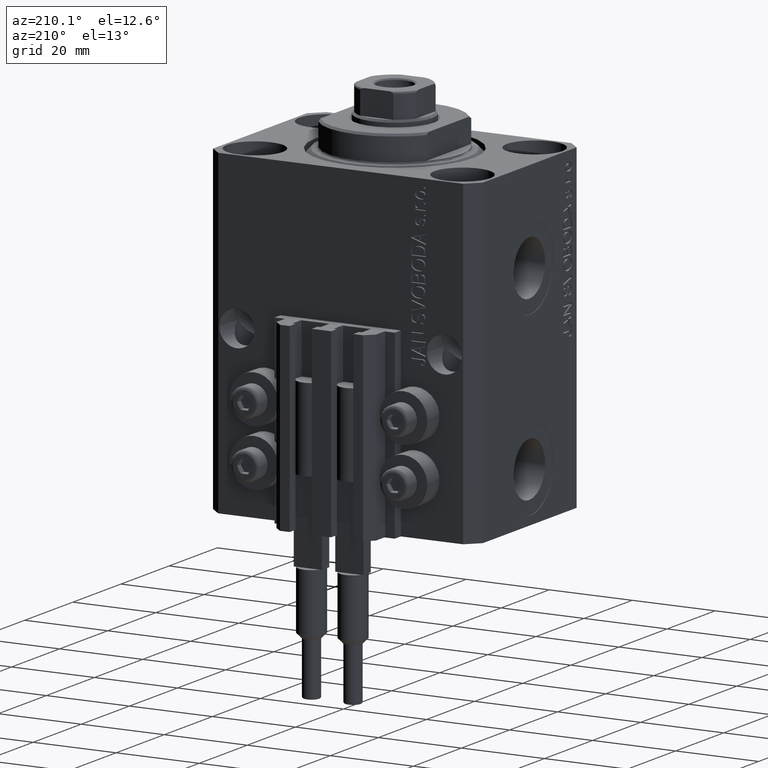
[diagram: clean part render]
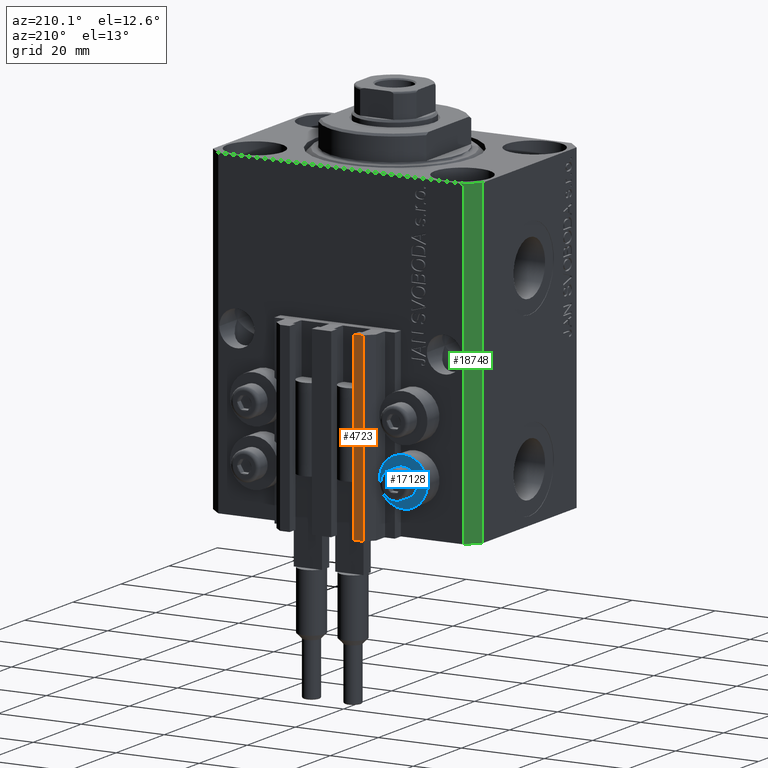
[diagram: same view with three faces highlighted in distinct colors, each labeled with its STEP entity id]
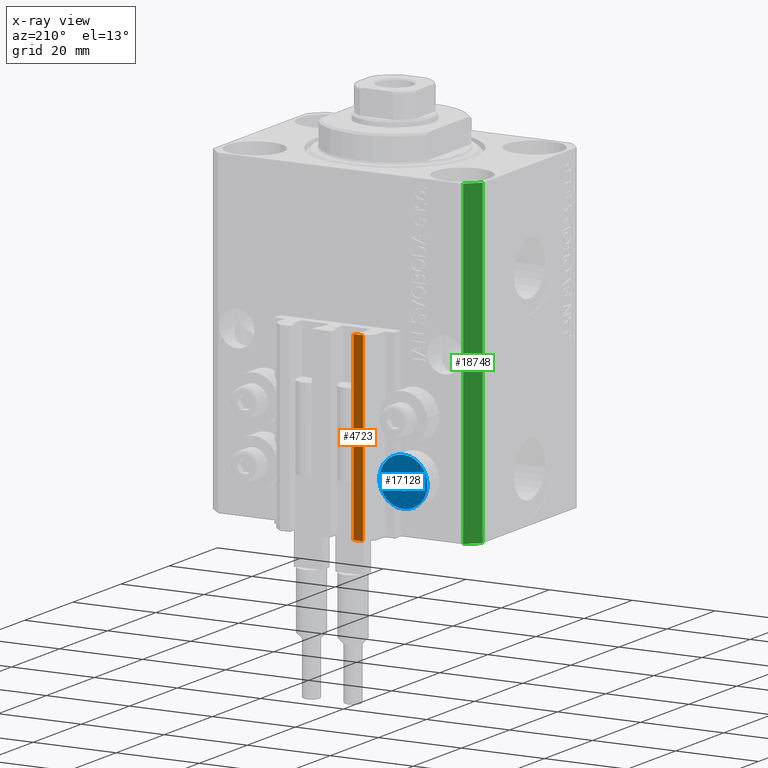
[diagram: x-ray of the same camera — body ghosted, the three highlighted faces saturated]
A machine part, auxiliary view with three faces highlighted in distinct colors.
The next image is the same camera in x-ray (body ghosted, the three faces saturated) — at least one of them is partly hidden behind the body in this view.
Their STEP definitions:

[orange] entity #4723 — the highlighted planar face has unit normal (0, 1, 0).
#1401 = ORIENTED_EDGE ( 'NONE', *, *, #48146, .T. ) ;
#2309 = ORIENTED_EDGE ( 'NONE', *, *, #30567, .F. ) ;
#4723 = ADVANCED_FACE ( 'NONE', ( #43395 ), #13437, .T. ) ;
#10758 = CARTESIAN_POINT ( 'NONE',  ( -7.650000000000000355, 30.49999999999948486, -33.00000000000000000 ) ) ;
#10840 = DIRECTION ( 'NONE',  ( 0.000000000000000000, 0.000000000000000000, 1.000000000000000000 ) ) ;
#13437 = PLANE ( 'NONE',  #27845 ) ;
#13609 = EDGE_CURVE ( 'NONE', #24386, #17845, #27156, .T. ) ;
#14457 = EDGE_LOOP ( 'NONE', ( #24210, #2309, #43519, #1401 ) ) ;
#14838 = DIRECTION ( 'NONE',  ( -1.000000000000000000, 1.476360405086644852E-15, 0.000000000000000000 ) ) ;
#15769 = CARTESIAN_POINT ( 'NONE',  ( -7.650000000000000355, 30.49999999999948486, -77.00000000000000000 ) ) ;
#17654 = VERTEX_POINT ( 'NONE', #20162 ) ;
#17845 = VERTEX_POINT ( 'NONE', #30675 ) ;
#20162 = CARTESIAN_POINT ( 'NONE',  ( -10.00000000000000000, 30.49999999999948841, -33.00000000000000000 ) ) ;
#21566 = LINE ( 'NONE', #10758, #30868 ) ;
#22581 = VECTOR ( 'NONE', #30600, 1000.000000000000000 ) ;
#23810 = VECTOR ( 'NONE', #47686, 1000.000000000000000 ) ;
#24101 = VERTEX_POINT ( 'NONE', #30571 ) ;
#24210 = ORIENTED_EDGE ( 'NONE', *, *, #31071, .F. ) ;
#24386 = VERTEX_POINT ( 'NONE', #15769 ) ;
#25490 = DIRECTION ( 'NONE',  ( -1.000000000000000000, 1.476360405086644852E-15, 0.000000000000000000 ) ) ;
#27156 = LINE ( 'NONE', #42609, #22581 ) ;
#27845 = AXIS2_PLACEMENT_3D ( 'NONE', #39966, #32344, #14838 ) ;
#30567 = EDGE_CURVE ( 'NONE', #24386, #24101, #36402, .T. ) ;
#30571 = CARTESIAN_POINT ( 'NONE',  ( -7.650000000000000355, 30.49999999999948486, -33.00000000000000000 ) ) ;
#30600 = DIRECTION ( 'NONE',  ( -1.000000000000000000, 1.476360405086644852E-15, 0.000000000000000000 ) ) ;
#30675 = CARTESIAN_POINT ( 'NONE',  ( -10.00000000000000000, 30.49999999999948841, -77.00000000000000000 ) ) ;
#30868 = VECTOR ( 'NONE', #25490, 1000.000000000000000 ) ;
#31071 = EDGE_CURVE ( 'NONE', #24101, #17654, #21566, .T. ) ;
#32344 = DIRECTION ( 'NONE',  ( 1.476360405086644852E-15, 1.000000000000000000, -0.000000000000000000 ) ) ;
#32933 = LINE ( 'NONE', #36365, #34666 ) ;
#34666 = VECTOR ( 'NONE', #10840, 1000.000000000000000 ) ;
#36365 = CARTESIAN_POINT ( 'NONE',  ( -10.00000000000000000, 30.49999999999948841, -77.00000000000000000 ) ) ;
#36402 = LINE ( 'NONE', #40589, #23810 ) ;
#39966 = CARTESIAN_POINT ( 'NONE',  ( -7.650000000000000355, 30.49999999999948486, -77.00000000000000000 ) ) ;
#40589 = CARTESIAN_POINT ( 'NONE',  ( -7.650000000000000355, 30.49999999999948486, -77.00000000000000000 ) ) ;
#42609 = CARTESIAN_POINT ( 'NONE',  ( -7.650000000000000355, 30.49999999999948486, -77.00000000000000000 ) ) ;
#43395 = FACE_OUTER_BOUND ( 'NONE', #14457, .T. ) ;
#43519 = ORIENTED_EDGE ( 'NONE', *, *, #13609, .T. ) ;
#47686 = DIRECTION ( 'NONE',  ( 0.000000000000000000, 0.000000000000000000, 1.000000000000000000 ) ) ;
#48146 = EDGE_CURVE ( 'NONE', #17845, #17654, #32933, .T. ) ;

[blue] entity #17128 — the highlighted planar face has unit normal (0, -1, 0).
#449 = DIRECTION ( 'NONE',  ( 0.000000000000000000, 0.000000000000000000, -1.000000000000000000 ) ) ;
#1184 = AXIS2_PLACEMENT_3D ( 'NONE', #17919, #33131, #14330 ) ;
#3475 = ORIENTED_EDGE ( 'NONE', *, *, #32474, .T. ) ;
#7048 = DIRECTION ( 'NONE',  ( 0.000000000000000000, 0.000000000000000000, -1.000000000000000000 ) ) ;
#8341 = DIRECTION ( 'NONE',  ( 0.000000000000000000, -1.000000000000000000, 0.000000000000000000 ) ) ;
#9213 = AXIS2_PLACEMENT_3D ( 'NONE', #31147, #46101, #20565 ) ;
#9282 = ORIENTED_EDGE ( 'NONE', *, *, #36728, .T. ) ;
#10072 = EDGE_LOOP ( 'NONE', ( #20159, #28468 ) ) ;
#10233 = DIRECTION ( 'NONE',  ( -0.000000000000000000, -1.000000000000000000, -0.000000000000000000 ) ) ;
#11274 = CARTESIAN_POINT ( 'NONE',  ( -18.00000000000000355, 27.49999999996051514, -69.79999999999999716 ) ) ;
#12418 = VERTEX_POINT ( 'NONE', #11274 ) ;
#13109 = CIRCLE ( 'NONE', #9213, 5.799999999999999822 ) ;
#14330 = DIRECTION ( 'NONE',  ( 0.000000000000000000, 0.000000000000000000, -1.000000000000000000 ) ) ;
#15408 = CARTESIAN_POINT ( 'NONE',  ( -18.00000000000000355, 27.49999999996051514, -64.00000000000000000 ) ) ;
#15687 = FACE_BOUND ( 'NONE', #15691, .T. ) ;
#15691 = EDGE_LOOP ( 'NONE', ( #9282, #3475 ) ) ;
#16415 = CARTESIAN_POINT ( 'NONE',  ( -12.20000000000000284, 27.49999999996051514, -64.00000000000000000 ) ) ;
#17128 = ADVANCED_FACE ( 'NONE', ( #15687, #42921 ), #19853, .F. ) ;
#17919 = CARTESIAN_POINT ( 'NONE',  ( -18.00000000000000355, 27.49999999996051514, -64.00000000000000000 ) ) ;
#19570 = VERTEX_POINT ( 'NONE', #30500 ) ;
#19853 = PLANE ( 'NONE',  #24216 ) ;
#20159 = ORIENTED_EDGE ( 'NONE', *, *, #31294, .F. ) ;
#20565 = DIRECTION ( 'NONE',  ( 0.000000000000000000, 0.000000000000000000, -1.000000000000000000 ) ) ;
#24216 = AXIS2_PLACEMENT_3D ( 'NONE', #16415, #8341, #38280 ) ;
#25699 = CARTESIAN_POINT ( 'NONE',  ( -18.00000000000000355, 27.49999999996051514, -64.00000000000000000 ) ) ;
#26207 = AXIS2_PLACEMENT_3D ( 'NONE', #15408, #34069, #449 ) ;
#28292 = VERTEX_POINT ( 'NONE', #38679 ) ;
#28468 = ORIENTED_EDGE ( 'NONE', *, *, #42364, .F. ) ;
#30165 = AXIS2_PLACEMENT_3D ( 'NONE', #25699, #10233, #7048 ) ;
#30500 = CARTESIAN_POINT ( 'NONE',  ( -18.00000000000000355, 27.49999999996051514, -66.00000000000000000 ) ) ;
#30966 = CIRCLE ( 'NONE', #1184, 2.000000000000001776 ) ;
#31147 = CARTESIAN_POINT ( 'NONE',  ( -18.00000000000000355, 27.49999999996051514, -64.00000000000000000 ) ) ;
#31294 = EDGE_CURVE ( 'NONE', #12418, #33931, #44195, .T. ) ;
#32474 = EDGE_CURVE ( 'NONE', #19570, #28292, #39552, .T. ) ;
#32952 = CARTESIAN_POINT ( 'NONE',  ( -18.00000000000000355, 27.49999999996051514, -58.20000000000000284 ) ) ;
#33131 = DIRECTION ( 'NONE',  ( -0.000000000000000000, -1.000000000000000000, -0.000000000000000000 ) ) ;
#33931 = VERTEX_POINT ( 'NONE', #32952 ) ;
#34069 = DIRECTION ( 'NONE',  ( -0.000000000000000000, -1.000000000000000000, -0.000000000000000000 ) ) ;
#36728 = EDGE_CURVE ( 'NONE', #28292, #19570, #30966, .T. ) ;
#38280 = DIRECTION ( 'NONE',  ( 0.000000000000000000, 0.000000000000000000, 1.000000000000000000 ) ) ;
#38679 = CARTESIAN_POINT ( 'NONE',  ( -18.00000000000000355, 27.49999999996051514, -62.00000000000000000 ) ) ;
#39552 = CIRCLE ( 'NONE', #30165, 2.000000000000001776 ) ;
#42364 = EDGE_CURVE ( 'NONE', #33931, #12418, #13109, .T. ) ;
#42921 = FACE_OUTER_BOUND ( 'NONE', #10072, .T. ) ;
#44195 = CIRCLE ( 'NONE', #26207, 5.799999999999999822 ) ;
#46101 = DIRECTION ( 'NONE',  ( -0.000000000000000000, -1.000000000000000000, -0.000000000000000000 ) ) ;

[green] entity #18748 — the highlighted planar face has unit normal (-0.7071, 0.7071, 0).
#574 = VECTOR ( 'NONE', #25952, 1000.000000000000114 ) ;
#2461 = LINE ( 'NONE', #28231, #32490 ) ;
#2921 = CARTESIAN_POINT ( 'NONE',  ( -29.49999999999650413, 22.49999999999949907, 0.000000000000000000 ) ) ;
#4275 = DIRECTION ( 'NONE',  ( 0.000000000000000000, 0.000000000000000000, 1.000000000000000000 ) ) ;
#4880 = PLANE ( 'NONE',  #19705 ) ;
#5205 = DIRECTION ( 'NONE',  ( -0.7071067811865474617, -0.7071067811865474617, 0.000000000000000000 ) ) ;
#8028 = VERTEX_POINT ( 'NONE', #13212 ) ;
#9575 = VERTEX_POINT ( 'NONE', #21875 ) ;
#9780 = VERTEX_POINT ( 'NONE', #2921 ) ;
#10772 = ORIENTED_EDGE ( 'NONE', *, *, #12761, .F. ) ;
#11809 = EDGE_CURVE ( 'NONE', #9575, #9780, #30306, .T. ) ;
#12761 = EDGE_CURVE ( 'NONE', #9780, #8028, #29641, .T. ) ;
#13212 = CARTESIAN_POINT ( 'NONE',  ( -32.49999999999650413, 19.49999999999949907, 0.000000000000000000 ) ) ;
#15914 = EDGE_LOOP ( 'NONE', ( #10772, #34703, #43809, #33496 ) ) ;
#17626 = EDGE_CURVE ( 'NONE', #9575, #34067, #20643, .T. ) ;
#18748 = ADVANCED_FACE ( 'NONE', ( #34572 ), #4880, .T. ) ;
#19705 = AXIS2_PLACEMENT_3D ( 'NONE', #35533, #19845, #45621 ) ;
#19845 = DIRECTION ( 'NONE',  ( -0.7071067811865475727, 0.7071067811865475727, 0.000000000000000000 ) ) ;
#20643 = LINE ( 'NONE', #42748, #32895 ) ;
#21875 = CARTESIAN_POINT ( 'NONE',  ( -29.49999999999650413, 22.49999999999949907, -77.00000000000000000 ) ) ;
#22688 = CARTESIAN_POINT ( 'NONE',  ( -29.49999999999650413, 22.49999999999949907, -77.00000000000000000 ) ) ;
#25952 = DIRECTION ( 'NONE',  ( -0.7071067811865474617, -0.7071067811865474617, 0.000000000000000000 ) ) ;
#27201 = VECTOR ( 'NONE', #4275, 1000.000000000000000 ) ;
#28231 = CARTESIAN_POINT ( 'NONE',  ( -32.49999999999650413, 19.49999999999949907, -77.00000000000000000 ) ) ;
#29641 = LINE ( 'NONE', #37493, #574 ) ;
#30306 = LINE ( 'NONE', #22688, #27201 ) ;
#32490 = VECTOR ( 'NONE', #32641, 1000.000000000000000 ) ;
#32641 = DIRECTION ( 'NONE',  ( 0.000000000000000000, 0.000000000000000000, 1.000000000000000000 ) ) ;
#32895 = VECTOR ( 'NONE', #5205, 1000.000000000000114 ) ;
#33496 = ORIENTED_EDGE ( 'NONE', *, *, #35621, .T. ) ;
#34067 = VERTEX_POINT ( 'NONE', #37614 ) ;
#34572 = FACE_OUTER_BOUND ( 'NONE', #15914, .T. ) ;
#34703 = ORIENTED_EDGE ( 'NONE', *, *, #11809, .F. ) ;
#35533 = CARTESIAN_POINT ( 'NONE',  ( -29.49999999999650413, 22.49999999999949907, -77.00000000000000000 ) ) ;
#35621 = EDGE_CURVE ( 'NONE', #34067, #8028, #2461, .T. ) ;
#37493 = CARTESIAN_POINT ( 'NONE',  ( -29.49999999999650413, 22.49999999999949907, 0.000000000000000000 ) ) ;
#37614 = CARTESIAN_POINT ( 'NONE',  ( -32.49999999999650413, 19.49999999999949907, -77.00000000000000000 ) ) ;
#42748 = CARTESIAN_POINT ( 'NONE',  ( -29.49999999999650413, 22.49999999999949907, -77.00000000000000000 ) ) ;
#43809 = ORIENTED_EDGE ( 'NONE', *, *, #17626, .T. ) ;
#45621 = DIRECTION ( 'NONE',  ( -0.7071067811865474617, -0.7071067811865474617, 0.000000000000000000 ) ) ;